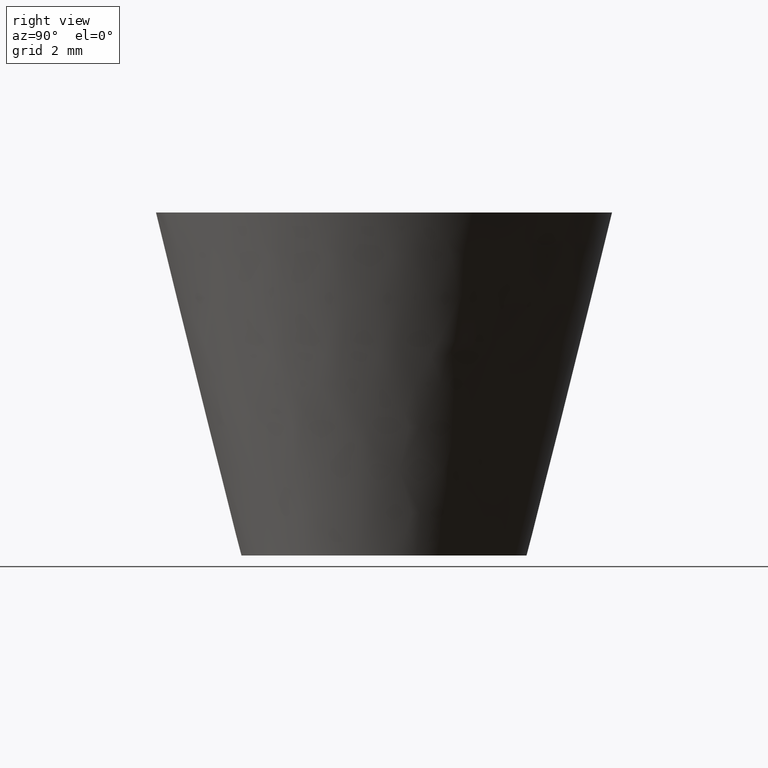
[diagram: clean part render]
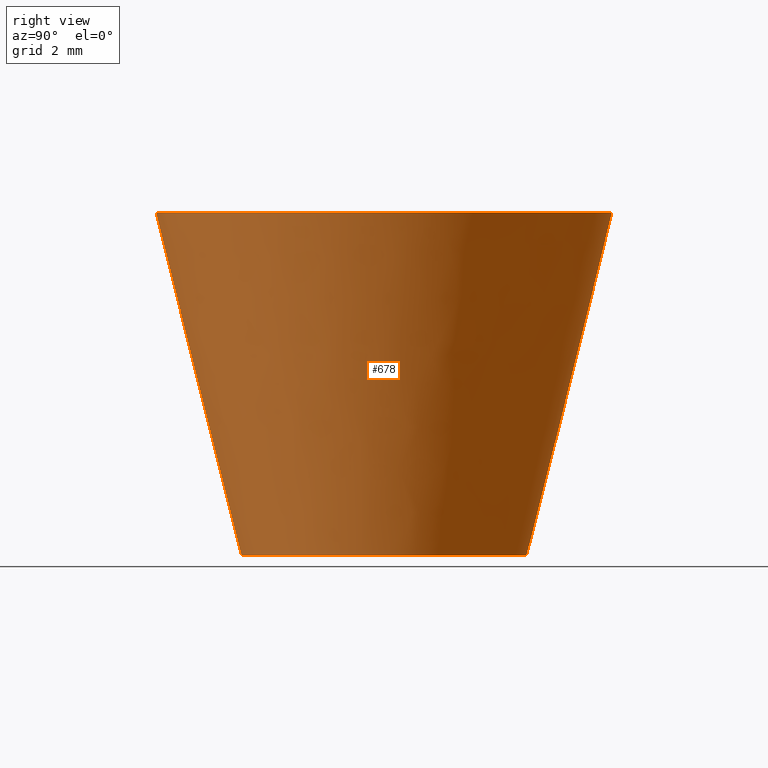
[diagram: same view with one face highlighted and labeled with its STEP entity id]
A machine part, right view. The second image highlights one B-rep face of the part: STEP entity #678.
In plain terms, the highlighted face is a freeform B-spline surface patch.
Its self-contained STEP definition (entity closure, byte-faithful):
#517=CARTESIAN_POINT('',(-0.392290246159730,4.984586259780227,-0.000003272620757));
#518=VERTEX_POINT('',#517);
#532=CARTESIAN_POINT('',(0.392290246159729,-4.984586259780228,-0.000003272620757));
#533=VERTEX_POINT('',#532);
#549=CARTESIAN_POINT('',(0.627668122354431,-7.975338299087095,11.999997064181500));
#550=VERTEX_POINT('',#549);
#551=CARTESIAN_POINT('',(0.392290246159729,-4.984586259780228,-0.000003272620757));
#552=CARTESIAN_POINT('',(0.627668122354431,-7.975338299087095,11.999997064181500));
#553=QUASI_UNIFORM_CURVE('',1,(#551,#552),.UNSPECIFIED.,.F.,.U.);
#554=EDGE_CURVE('',#533,#550,#553,.T.);
#573=CARTESIAN_POINT('',(-0.627668122354432,7.975338299087094,11.999997064181500));
#574=VERTEX_POINT('',#573);
#588=CARTESIAN_POINT('',(-0.392290246159730,4.984586259780227,-0.000003272620757));
#589=CARTESIAN_POINT('',(-0.627668122354432,7.975338299087094,11.999997064181500));
#590=QUASI_UNIFORM_CURVE('',1,(#588,#589),.UNSPECIFIED.,.F.,.U.);
#591=EDGE_CURVE('',#518,#574,#590,.T.);
#596=CARTESIAN_POINT('',(0.386411046459639,-4.909817868635654,-0.300000000000000));
#597=CARTESIAN_POINT('',(5.296228915095294,-4.523406822176014,-0.300000000000000));
#598=CARTESIAN_POINT('',(4.909817868635654,0.386411046459639,-0.300000000000000));
#599=CARTESIAN_POINT('',(4.523406822176014,5.296228915095294,-0.300000000000000));
#600=CARTESIAN_POINT('',(-0.386411046459639,4.909817868635654,-0.300000000000000));
#601=CARTESIAN_POINT('',(0.633704308806842,-8.051976689895756,12.307499999999999));
#602=CARTESIAN_POINT('',(8.685680998702599,-7.418272381088914,12.307500000000005));
#603=CARTESIAN_POINT('',(8.051976689895756,0.633704308806842,12.307499999999999));
#604=CARTESIAN_POINT('',(7.418272381088914,8.685680998702599,12.307500000000005));
#605=CARTESIAN_POINT('',(-0.633704308806842,8.051976689895756,12.307499999999999));
#613=(BOUNDED_SURFACE()B_SPLINE_SURFACE(2,1,((#596,#601),(#597,#602),(#598,#603),(#599,#604),(#600,#605)),.UNSPECIFIED.,.F.,.F.,.U.)B_SPLINE_SURFACE_WITH_KNOTS((3,2,3),(2,2),(0.0,13.382204666368770,26.764409332737529),(0.0,12.995513543743670),.UNSPECIFIED.)GEOMETRIC_REPRESENTATION_ITEM()RATIONAL_B_SPLINE_SURFACE(((1.0,1.0),(0.707106781186548,0.707106781186548),(1.0,1.0),(0.707106781186548,0.707106781186548),(1.0,1.0)))REPRESENTATION_ITEM('')SURFACE());
#614=CARTESIAN_POINT('',(5.0,0.0,0.0));
#615=VERTEX_POINT('',#614);
#616=CARTESIAN_POINT('',(-0.392290246159730,4.984586259780227,-0.000003272620757));
#617=CARTESIAN_POINT('',(-0.196447875876697,4.999999199175686,-0.000003213191667));
#618=CARTESIAN_POINT('',(0.000000061764384,4.999999215198683,-0.000003148901707));
#619=CARTESIAN_POINT('',(5.000000029668843,4.999999623016601,-0.000001512591328));
#620=CARTESIAN_POINT('',(5.0,0.0,0.0));
#628=(BOUNDED_CURVE()B_SPLINE_CURVE(2,(#616,#617,#618,#619,#620),.UNSPECIFIED.,.F.,.U.)B_SPLINE_CURVE_WITH_KNOTS((3,2,3),(0.236331478374955,0.250000000000000,0.500000000000000),.UNSPECIFIED.)CURVE()GEOMETRIC_REPRESENTATION_ITEM()RATIONAL_B_SPLINE_CURVE((0.969723727106498,0.983986330819277,1.0,0.707106781186548,1.0))REPRESENTATION_ITEM(''));
#629=EDGE_CURVE('',#518,#615,#628,.T.);
#630=ORIENTED_EDGE('',*,*,#629,.F.);
#631=ORIENTED_EDGE('',*,*,#591,.T.);
#632=CARTESIAN_POINT('',(8.0,0.0,12.0));
#633=VERTEX_POINT('',#632);
#634=CARTESIAN_POINT('',(-0.627668122354432,7.975338299087094,11.999997064181498));
#635=CARTESIAN_POINT('',(-0.314318495939624,7.999999281593803,11.999997117494724));
#636=CARTESIAN_POINT('',(0.000000055408124,7.999999295967855,11.999997175168611));
#637=CARTESIAN_POINT('',(8.000000026615574,7.999999661814575,11.999998643077864));
#638=CARTESIAN_POINT('',(8.0,0.0,12.0));
#646=(BOUNDED_CURVE()B_SPLINE_CURVE(2,(#634,#635,#636,#637,#638),.UNSPECIFIED.,.F.,.U.)B_SPLINE_CURVE_WITH_KNOTS((3,2,3),(0.236331399203222,0.250000000000000,0.500000000000000),.UNSPECIFIED.)CURVE()GEOMETRIC_REPRESENTATION_ITEM()RATIONAL_B_SPLINE_CURVE((0.969723561880926,0.983986238063822,1.0,0.707106781186548,1.0))REPRESENTATION_ITEM(''));
#647=EDGE_CURVE('',#574,#633,#646,.T.);
#648=ORIENTED_EDGE('',*,*,#647,.T.);
#649=CARTESIAN_POINT('',(8.0,0.0,12.0));
#650=CARTESIAN_POINT('',(7.999999971207449,-7.395127832823927,11.999998532090750));
#651=CARTESIAN_POINT('',(0.627668122354431,-7.975338299087096,11.999997064181498));
#659=(BOUNDED_CURVE()B_SPLINE_CURVE(2,(#649,#650,#651),.UNSPECIFIED.,.F.,.U.)B_SPLINE_CURVE_WITH_KNOTS((3,3),(0.500000000000000,0.736331399203222),.UNSPECIFIED.)CURVE()GEOMETRIC_REPRESENTATION_ITEM()RATIONAL_B_SPLINE_CURVE((1.0,0.723120543122726,0.969723561880926))REPRESENTATION_ITEM(''));
#660=EDGE_CURVE('',#633,#550,#659,.T.);
#661=ORIENTED_EDGE('',*,*,#660,.T.);
#662=ORIENTED_EDGE('',*,*,#554,.F.);
#663=CARTESIAN_POINT('',(5.0,0.0,0.0));
#664=CARTESIAN_POINT('',(4.999999967904460,-4.621956857583637,-0.000001636310378));
#665=CARTESIAN_POINT('',(0.392290246159729,-4.984586259780228,-0.000003272620757));
#673=(BOUNDED_CURVE()B_SPLINE_CURVE(2,(#663,#664,#665),.UNSPECIFIED.,.F.,.U.)B_SPLINE_CURVE_WITH_KNOTS((3,3),(0.500000000000000,0.736331478374955),.UNSPECIFIED.)CURVE()GEOMETRIC_REPRESENTATION_ITEM()RATIONAL_B_SPLINE_CURVE((1.0,0.723120450367271,0.969723727106498))REPRESENTATION_ITEM(''));
#674=EDGE_CURVE('',#615,#533,#673,.T.);
#675=ORIENTED_EDGE('',*,*,#674,.F.);
#676=EDGE_LOOP('',(#630,#631,#648,#661,#662,#675));
#677=FACE_OUTER_BOUND('',#676,.T.);
#678=ADVANCED_FACE('',(#677),#613,.T.);